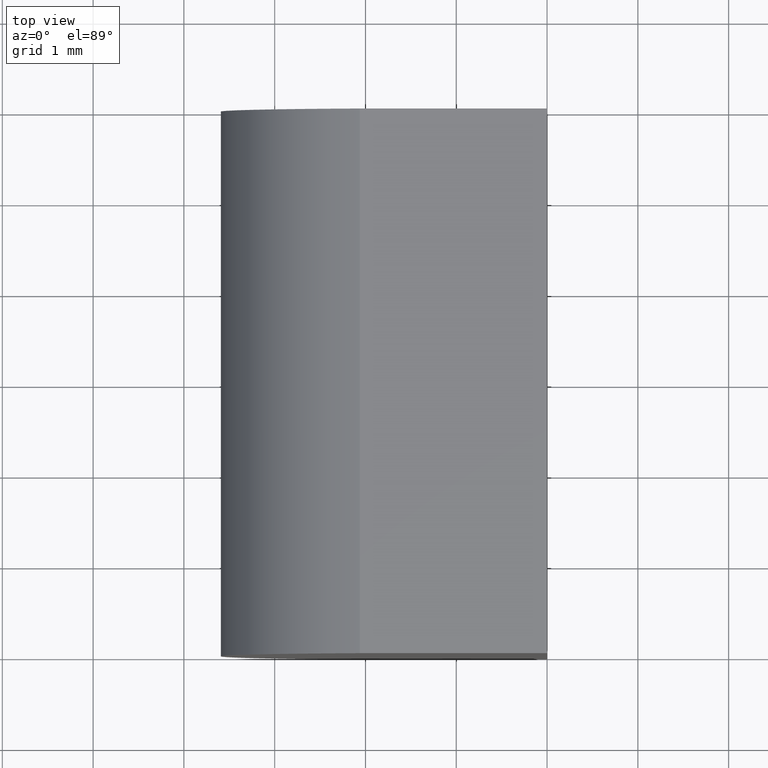
[diagram: clean part render]
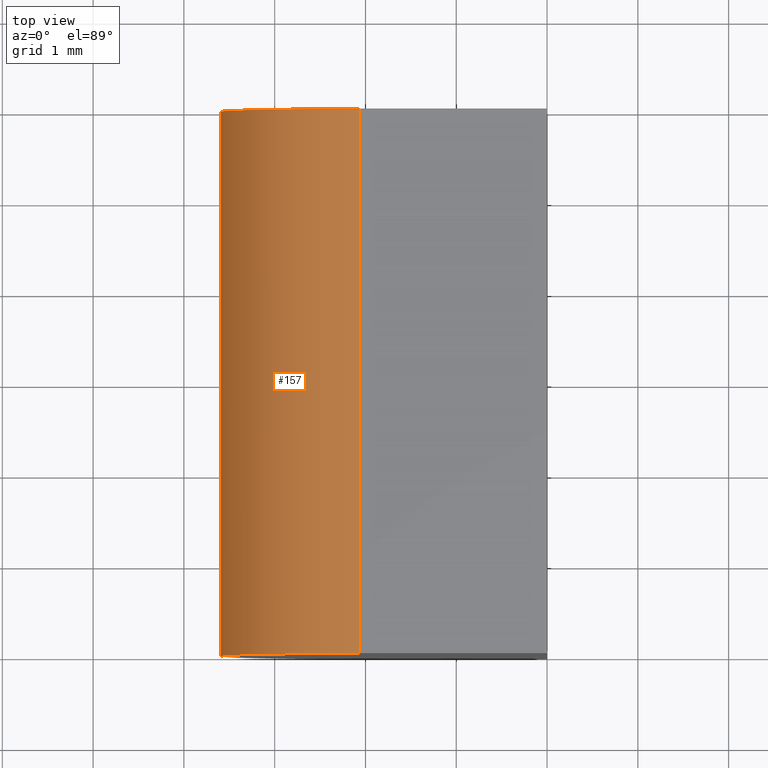
[diagram: same view with one face highlighted and labeled with its STEP entity id]
A machine part, top view. The second image highlights one B-rep face of the part: STEP entity #157.
In plain terms, the highlighted cylindrical surface (partial cylindrical patch) has radius 2.07 mm, axis along (-0, -1, -0).
Its self-contained STEP definition (entity closure, byte-faithful):
#1 = EDGE_LOOP ( 'NONE', ( #30, #145, #148, #181 ) ) ;
#2 = VECTOR ( 'NONE', #83, 1000.000000000000000 ) ;
#8 = DIRECTION ( 'NONE',  ( -0.0000000000000000000, -1.000000000000000000, -0.0000000000000000000 ) ) ;
#20 = CARTESIAN_POINT ( 'NONE',  ( -2.063760245803301500, 6.000000000000000000, 4.336808689942017700E-016 ) ) ;
#30 = ORIENTED_EDGE ( 'NONE', *, *, #56, .T. ) ;
#31 = DIRECTION ( 'NONE',  ( 0.0000000000000000000, 1.000000000000000000, 0.0000000000000000000 ) ) ;
#33 = AXIS2_PLACEMENT_3D ( 'NONE', #159, #8, #105 ) ;
#47 = VECTOR ( 'NONE', #202, 1000.000000000000000 ) ;
#48 = CIRCLE ( 'NONE', #92, 2.069999999999999800 ) ;
#52 = CARTESIAN_POINT ( 'NONE',  ( -2.063760245803301500, 0.0000000000000000000, 4.336808689942017700E-016 ) ) ;
#56 = EDGE_CURVE ( 'NONE', #109, #59, #48, .T. ) ;
#59 = VERTEX_POINT ( 'NONE', #76 ) ;
#60 = CYLINDRICAL_SURFACE ( 'NONE', #33, 2.069999999999999800 ) ;
#73 = CARTESIAN_POINT ( 'NONE',  ( -2.063760245803302000, 6.000000000000000000, 3.999999999999999100 ) ) ;
#75 = DIRECTION ( 'NONE',  ( 0.0000000000000000000, 0.0000000000000000000, 1.000000000000000000 ) ) ;
#76 = CARTESIAN_POINT ( 'NONE',  ( -2.063760245803302000, 0.0000000000000000000, 3.999999999999999100 ) ) ;
#83 = DIRECTION ( 'NONE',  ( -0.0000000000000000000, -1.000000000000000000, -0.0000000000000000000 ) ) ;
#87 = LINE ( 'NONE', #111, #47 ) ;
#90 = CARTESIAN_POINT ( 'NONE',  ( -1.529999999999999600, 6.000000000000000000, 2.000000000000000000 ) ) ;
#91 = DIRECTION ( 'NONE',  ( 0.0000000000000000000, 0.0000000000000000000, 1.000000000000000000 ) ) ;
#92 = AXIS2_PLACEMENT_3D ( 'NONE', #203, #31, #91 ) ;
#101 = FACE_OUTER_BOUND ( 'NONE', #1, .T. ) ;
#105 = DIRECTION ( 'NONE',  ( 0.0000000000000000000, 0.0000000000000000000, -1.000000000000000000 ) ) ;
#108 = EDGE_CURVE ( 'NONE', #160, #109, #87, .T. ) ;
#109 = VERTEX_POINT ( 'NONE', #52 ) ;
#111 = CARTESIAN_POINT ( 'NONE',  ( -2.063760245803301500, 6.000000000000000000, 4.336808689942017700E-016 ) ) ;
#115 = AXIS2_PLACEMENT_3D ( 'NONE', #90, #172, #75 ) ;
#125 = CARTESIAN_POINT ( 'NONE',  ( -2.063760245803302000, 6.000000000000000000, 3.999999999999999100 ) ) ;
#131 = EDGE_CURVE ( 'NONE', #201, #59, #176, .T. ) ;
#142 = EDGE_CURVE ( 'NONE', #160, #201, #178, .T. ) ;
#145 = ORIENTED_EDGE ( 'NONE', *, *, #131, .F. ) ;
#148 = ORIENTED_EDGE ( 'NONE', *, *, #142, .F. ) ;
#157 = ADVANCED_FACE ( 'NONE', ( #101 ), #60, .T. ) ;
#159 = CARTESIAN_POINT ( 'NONE',  ( -1.529999999999999600, 6.000000000000000000, 2.000000000000000000 ) ) ;
#160 = VERTEX_POINT ( 'NONE', #20 ) ;
#172 = DIRECTION ( 'NONE',  ( 0.0000000000000000000, 1.000000000000000000, 0.0000000000000000000 ) ) ;
#176 = LINE ( 'NONE', #73, #2 ) ;
#178 = CIRCLE ( 'NONE', #115, 2.069999999999999800 ) ;
#181 = ORIENTED_EDGE ( 'NONE', *, *, #108, .T. ) ;
#201 = VERTEX_POINT ( 'NONE', #125 ) ;
#202 = DIRECTION ( 'NONE',  ( -0.0000000000000000000, -1.000000000000000000, -0.0000000000000000000 ) ) ;
#203 = CARTESIAN_POINT ( 'NONE',  ( -1.529999999999999600, 0.0000000000000000000, 2.000000000000000000 ) ) ;